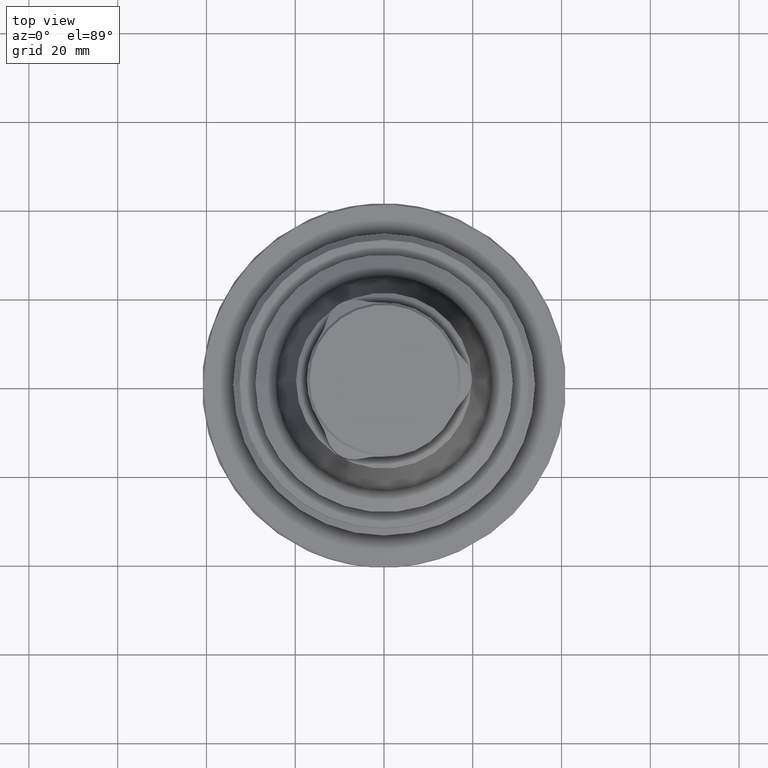
[diagram: clean part render]
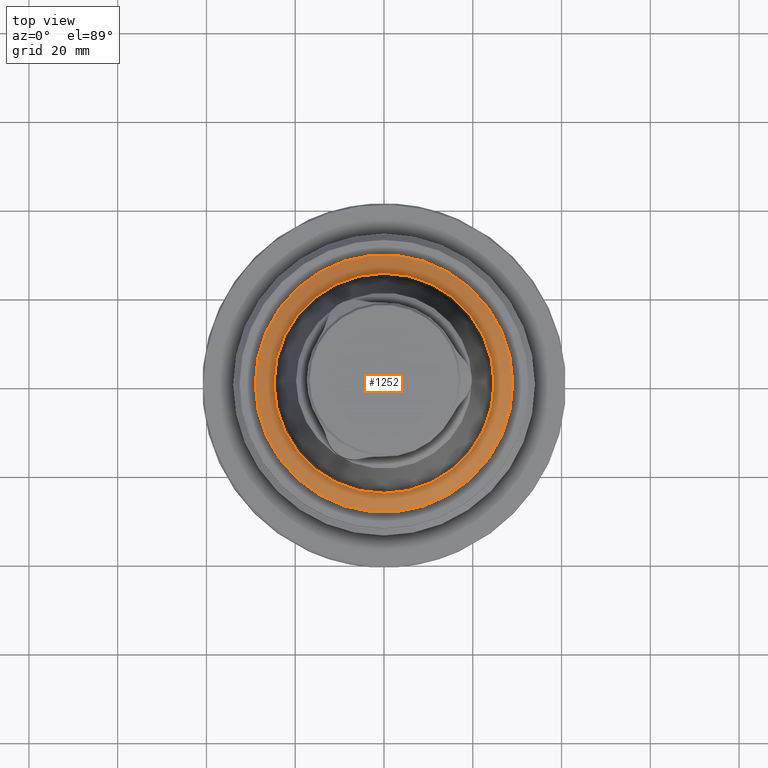
[diagram: same view with one face highlighted and labeled with its STEP entity id]
A machine part, top view. The second image highlights one B-rep face of the part: STEP entity #1252.
In plain terms, the highlighted conical surface has half-angle 60 deg.
Its self-contained STEP definition (entity closure, byte-faithful):
#175=CONICAL_SURFACE('',#1418,29.,1.0471975511966);
#551=ORIENTED_EDGE('',*,*,#718,.T.);
#552=ORIENTED_EDGE('',*,*,#719,.F.);
#718=EDGE_CURVE('',#838,#838,#909,.T.);
#719=EDGE_CURVE('',#839,#839,#910,.T.);
#838=VERTEX_POINT('',#2313);
#839=VERTEX_POINT('',#2316);
#909=CIRCLE('',#1417,24.8);
#910=CIRCLE('',#1419,29.);
#1030=EDGE_LOOP('',(#551));
#1031=EDGE_LOOP('',(#552));
#1155=FACE_BOUND('',#1030,.T.);
#1156=FACE_BOUND('',#1031,.T.);
#1252=ADVANCED_FACE('',(#1155,#1156),#175,.T.);
#1417=AXIS2_PLACEMENT_3D('',#2312,#1767,#1768);
#1418=AXIS2_PLACEMENT_3D('',#2314,#1769,#1770);
#1419=AXIS2_PLACEMENT_3D('',#2315,#1771,#1772);
#1767=DIRECTION('',(1.22461692971323E-16,-7.49836836562635E-33,-1.));
#1768=DIRECTION('',(-1.,6.12303176911189E-17,-1.22461692971323E-16));
#1769=DIRECTION('',(1.22461692971323E-16,-7.49836836562635E-33,-1.));
#1770=DIRECTION('',(-1.,6.12303176911189E-17,-1.22461692971323E-16));
#1771=DIRECTION('',(1.22461692971323E-16,-7.49836836562635E-33,-1.));
#1772=DIRECTION('',(-1.,6.12303176911189E-17,-1.22461692971323E-16));
#2312=CARTESIAN_POINT('',(6.07951171463002E-15,-3.72250433693675E-31,23.3567730538379));
#2313=CARTESIAN_POINT('',(-24.8,1.51851187873975E-15,23.3567730538379));
#2314=CARTESIAN_POINT('',(6.37646553852014E-15,-3.9043301067006E-31,20.9319019232415));
#2315=CARTESIAN_POINT('',(6.37646553852014E-15,-3.9043301067006E-31,20.9319019232415));
#2316=CARTESIAN_POINT('',(-29.,1.77567921304245E-15,20.9319019232415));